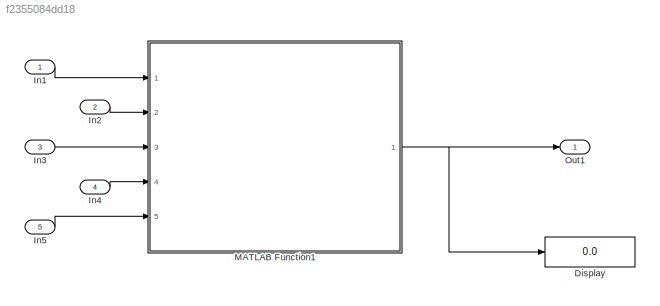
MODEL slx_f2355084dd18
KIND model
CONFIG AbsTol = auto
CONFIG EnableMultiTasking = off
CONFIG FixedStep = auto
CONFIG MaxStep = auto
CONFIG MinStep = auto
CONFIG RelTol = 1e-3
CONFIG SampleTimeConstraint = Unconstrained
CONFIG Solver = VariableStepAuto
CONFIG SolverName = VariableStepAuto
CONFIG StartTime = 0.0
CONFIG StopTime = 10.0
BLOCK [Display] Display
  Decimation = 1
  Ports = [1]
BLOCK [Inport] In1
  IconDisplay = Port number
  OutDataTypeStr = double
  PortDimensions = 1
BLOCK [Inport] In2
  IconDisplay = Port number
  OutDataTypeStr = double
  Port = 2
  PortDimensions = 1
BLOCK [Inport] In3
  IconDisplay = Port number
  OutDataTypeStr = double
  Port = 3
  PortDimensions = 1
BLOCK [Inport] In4
  IconDisplay = Port number
  OutDataTypeStr = double
  Port = 4
  PortDimensions = 1
BLOCK [Inport] In5
  IconDisplay = Port number
  OutDataTypeStr = double
  Port = 5
  PortDimensions = 3
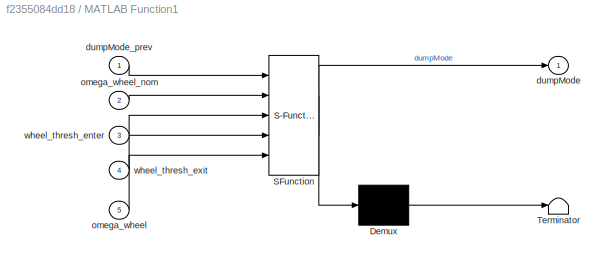
BLOCK [SubSystem] MATLAB Function1
  ErrorFcn = Stateflow.Translate.translate
  PermitHierarchicalResolution = ExplicitOnly
  Ports = [5, 1]
  RequestExecContextInheritance = off
  SFBlockType = MATLAB Function
  TreatAsAtomicUnit = on
  Variant = off
BLOCK [Demux] MATLAB Function1/ Demux 
  Outputs = 1
  Ports = [1, 1]
BLOCK [S-Function] MATLAB Function1/ SFunction 
  EnableBusSupport = on
  FunctionName = sf_sfun
  PortCounts = [5 2]
  Ports = [5, 2]
  SFcnIsStateOwnerBlock = off
  SFunctionDeploymentMode = off
  Tag = Stateflow S-Function bio_matfunc_dumpModeSwitch 18
BLOCK [Terminator] MATLAB Function1/ Terminator 
BLOCK [Outport] MATLAB Function1/dumpMode
  IconDisplay = Port number
BLOCK [Inport] MATLAB Function1/dumpMode_prev
  IconDisplay = Port number
BLOCK [Inport] MATLAB Function1/omega_wheel
  IconDisplay = Port number
  Port = 5
BLOCK [Inport] MATLAB Function1/omega_wheel_nom
  IconDisplay = Port number
  Port = 2
BLOCK [Inport] MATLAB Function1/wheel_thresh_enter
  IconDisplay = Port number
  Port = 3
BLOCK [Inport] MATLAB Function1/wheel_thresh_exit
  IconDisplay = Port number
  Port = 4
BLOCK [Outport] Out1
  IconDisplay = Port number
LINE In1:1 -> MATLAB Function1:1
LINE In2:1 -> MATLAB Function1:2
LINE In3:1 -> MATLAB Function1:3
LINE In4:1 -> MATLAB Function1:4
LINE In5:1 -> MATLAB Function1:5
NET MATLAB Function1:1 -> Display:1, Out1:1
note: NET lines group one-source signal fan-out (src -> all destinations, sorted); 1:1 wires keep LINE
CHART MATLAB Function1 states=1 transitions=1
  STATE_LABEL 'eML_blk_kernel()'
  STATE_LABEL 'SCRIPT:\nfunction dumpMode = dumpModeSwitch(dumpMode_prev,omega_wheel_nom,wheel_thresh_enter,wheel_thresh_exit,omega_wheel)\n%#codegen\n\nif dumpMode_prev == 0\n    if abs(omega_wheel(1) - omega_wheel_nom) > wheel_thresh_enter || abs(omega_wheel(2) - omega_wheel_nom) > wheel_thresh_enter || abs(omega_wheel(3) - omega_wheel_nom) > wheel_thresh_enter\n        dumpMode = 1;\n    else\n        dumpMode = 0;\n ...<+307ch>'
